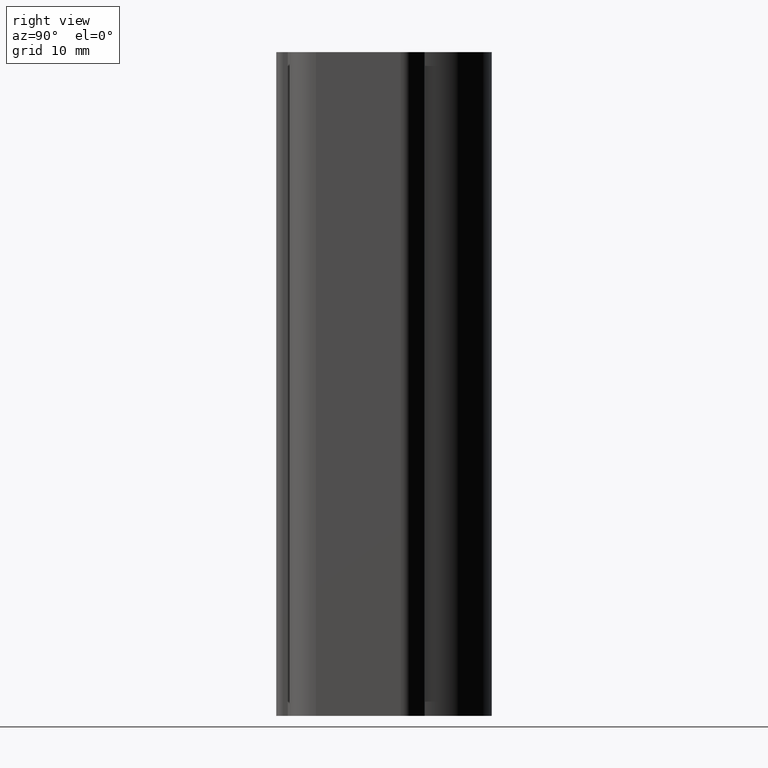
[diagram: clean part render]
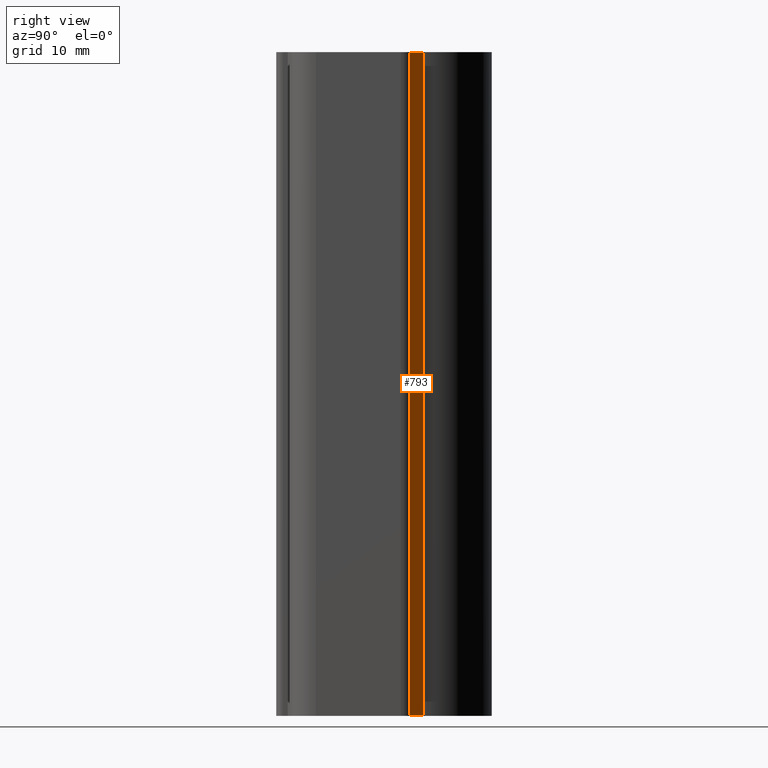
[diagram: same view with one face highlighted and labeled with its STEP entity id]
A machine part, right view. The second image highlights one B-rep face of the part: STEP entity #793.
In plain terms, the highlighted planar face has unit normal (0.7071, 0.7071, 0).
Its self-contained STEP definition (entity closure, byte-faithful):
#70=FACE_OUTER_BOUND('',#113,.T.);
#113=EDGE_LOOP('',(#633,#634,#635,#636));
#189=LINE('',#1278,#260);
#223=LINE('',#1389,#294);
#224=LINE('',#1392,#295);
#225=LINE('',#1393,#296);
#260=VECTOR('',#1013,10.);
#294=VECTOR('',#1129,10.);
#295=VECTOR('',#1132,10.);
#296=VECTOR('',#1133,10.);
#344=VERTEX_POINT('',#1275);
#345=VERTEX_POINT('',#1277);
#381=VERTEX_POINT('',#1387);
#382=VERTEX_POINT('',#1391);
#422=EDGE_CURVE('',#344,#345,#189,.T.);
#478=EDGE_CURVE('',#344,#381,#223,.T.);
#479=EDGE_CURVE('',#382,#381,#224,.T.);
#480=EDGE_CURVE('',#345,#382,#225,.T.);
#633=ORIENTED_EDGE('',*,*,#478,.T.);
#634=ORIENTED_EDGE('',*,*,#479,.F.);
#635=ORIENTED_EDGE('',*,*,#480,.F.);
#636=ORIENTED_EDGE('',*,*,#422,.F.);
#760=PLANE('',#937);
#793=ADVANCED_FACE('',(#70),#760,.T.);
#937=AXIS2_PLACEMENT_3D('',#1390,#1130,#1131);
#1013=DIRECTION('',(0.707106781186548,-0.707106781186548,0.));
#1129=DIRECTION('',(0.,0.,1.));
#1130=DIRECTION('center_axis',(0.707106781186548,0.707106781186548,0.));
#1131=DIRECTION('ref_axis',(-0.707106781186548,0.707106781186548,0.));
#1132=DIRECTION('',(-0.707106781186548,0.707106781186548,0.));
#1133=DIRECTION('',(0.,0.,1.));
#1275=CARTESIAN_POINT('',(13.9571067811865,2.10710678118669,-50.));
#1277=CARTESIAN_POINT('',(15.9142135623732,0.150000000000086,-50.));
#1278=CARTESIAN_POINT('',(15.9142135623732,0.150000000000086,-50.));
#1387=CARTESIAN_POINT('',(13.9571067811865,2.10710678118669,50.));
#1389=CARTESIAN_POINT('',(13.9571067811865,2.10710678118669,0.));
#1390=CARTESIAN_POINT('Origin',(15.9142135623732,0.150000000000086,0.));
#1391=CARTESIAN_POINT('',(15.9142135623732,0.150000000000086,50.));
#1392=CARTESIAN_POINT('',(15.9142135623732,0.150000000000086,50.));
#1393=CARTESIAN_POINT('',(15.9142135623732,0.150000000000086,0.));